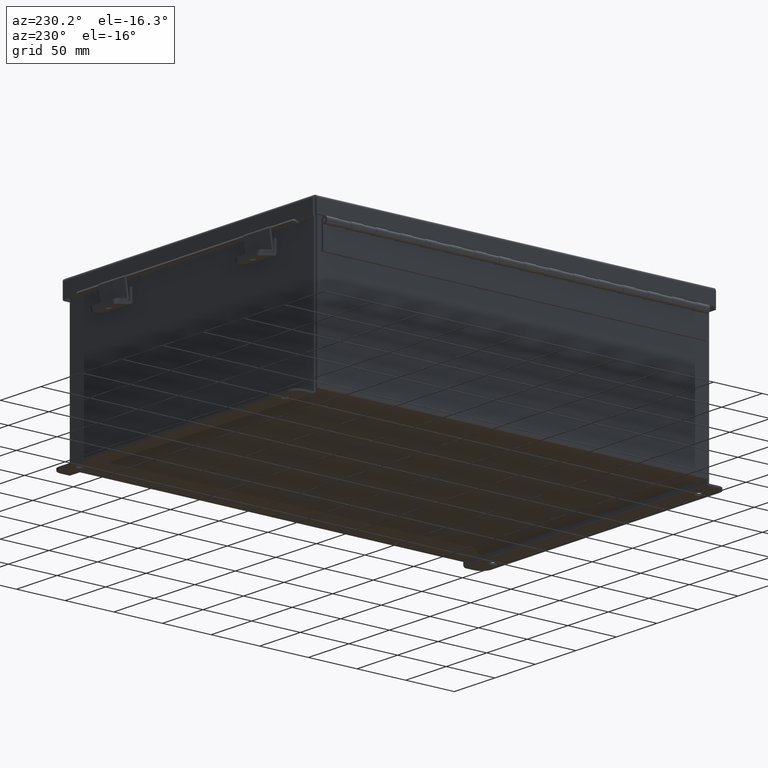
[diagram: clean part render]
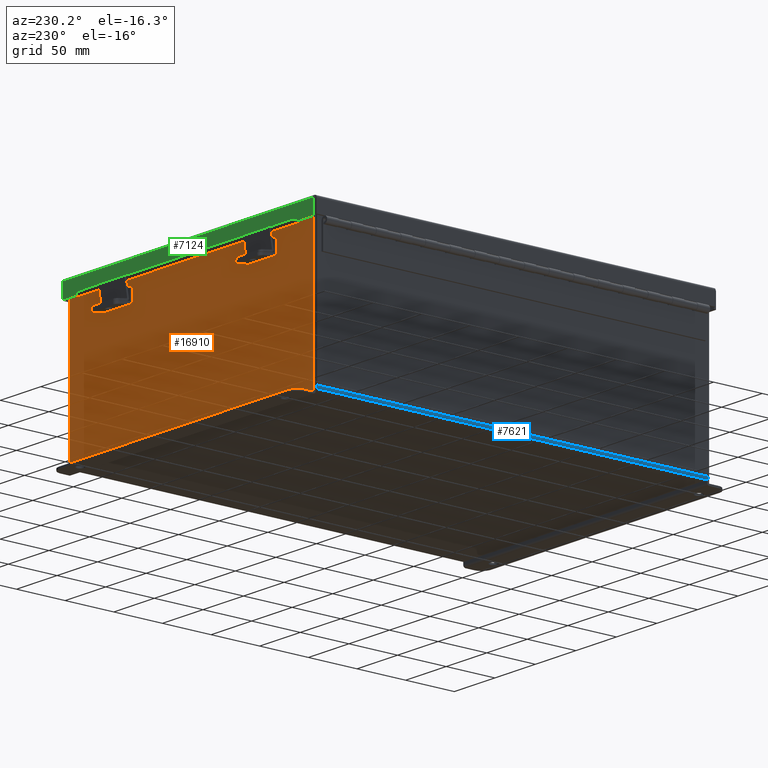
[diagram: same view with three faces highlighted in distinct colors, each labeled with its STEP entity id]
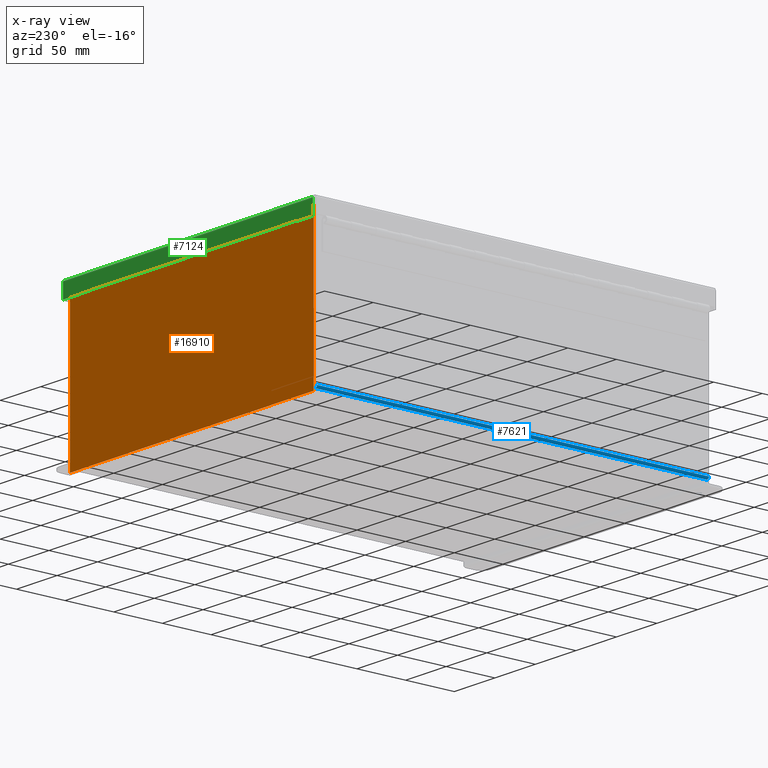
[diagram: x-ray of the same camera — body ghosted, the three highlighted faces saturated]
A machine part, auxiliary view with three faces highlighted in distinct colors.
The next image is the same camera in x-ray (body ghosted, the three faces saturated) — at least one of them is partly hidden behind the body in this view.
Their STEP definitions:

[orange] entity #16910 — the highlighted planar face has unit normal (0, -1, 0).
#170 = DIRECTION ( 'NONE',  ( -0.0000000000000000000, 1.000000000000000000, -0.0000000000000000000 ) ) ;
#941 = CARTESIAN_POINT ( 'NONE',  ( 5.582299999999999200, 0.0000000000000000000, 0.0000000000000000000 ) ) ;
#1221 = ORIENTED_EDGE ( 'NONE', *, *, #6904, .T. ) ;
#1263 = AXIS2_PLACEMENT_3D ( 'NONE', #8904, #13552, #10461 ) ;
#1463 = DIRECTION ( 'NONE',  ( 0.0000000000000000000, 0.0000000000000000000, -1.000000000000000000 ) ) ;
#1774 = VERTEX_POINT ( 'NONE', #5270 ) ;
#2016 = VERTEX_POINT ( 'NONE', #17118 ) ;
#2045 = ORIENTED_EDGE ( 'NONE', *, *, #8763, .F. ) ;
#2094 = CARTESIAN_POINT ( 'NONE',  ( 5.619650000000000000, 0.0000000000000000000, 2.925299999999999600 ) ) ;
#2206 = DIRECTION ( 'NONE',  ( 1.000000000000000000, 0.0000000000000000000, 0.0000000000000000000 ) ) ;
#2291 = VERTEX_POINT ( 'NONE', #6218 ) ;
#2847 = VERTEX_POINT ( 'NONE', #18567 ) ;
#2909 = EDGE_CURVE ( 'NONE', #2016, #5958, #11292, .T. ) ;
#3859 = CARTESIAN_POINT ( 'NONE',  ( -5.925300000000001800, 0.0000000000000000000, 2.925299999999999600 ) ) ;
#3970 = EDGE_CURVE ( 'NONE', #2016, #4163, #5202, .T. ) ;
#4073 = CARTESIAN_POINT ( 'NONE',  ( -5.619650000000000000, 0.0000000000000000000, 0.0000000000000000000 ) ) ;
#4163 = VERTEX_POINT ( 'NONE', #15773 ) ;
#4231 = ORIENTED_EDGE ( 'NONE', *, *, #19698, .F. ) ;
#4396 = ORIENTED_EDGE ( 'NONE', *, *, #4950, .T. ) ;
#4688 = CARTESIAN_POINT ( 'NONE',  ( -5.582300000000000900, 2.185478394931410600E-015, 2.912299999999999200 ) ) ;
#4906 = AXIS2_PLACEMENT_3D ( 'NONE', #9450, #170, #11011 ) ;
#4927 = ORIENTED_EDGE ( 'NONE', *, *, #3970, .F. ) ;
#4950 = EDGE_CURVE ( 'NONE', #9782, #16630, #14503, .T. ) ;
#5202 = LINE ( 'NONE', #12046, #17582 ) ;
#5259 = CIRCLE ( 'NONE', #13658, 0.01867500000000003900 ) ;
#5270 = CARTESIAN_POINT ( 'NONE',  ( -5.582300000000000000, 2.185478394931410600E-015, 2.912299999999999200 ) ) ;
#5603 = DIRECTION ( 'NONE',  ( 0.0000000000000000000, 0.0000000000000000000, 1.000000000000000000 ) ) ;
#5648 = ORIENTED_EDGE ( 'NONE', *, *, #17902, .F. ) ;
#5733 = VECTOR ( 'NONE', #5603, 39.37007874015748100 ) ;
#5845 = ORIENTED_EDGE ( 'NONE', *, *, #18230, .T. ) ;
#5918 = CARTESIAN_POINT ( 'NONE',  ( -5.582300000000000000, 0.0000000000000000000, 0.0000000000000000000 ) ) ;
#5958 = VERTEX_POINT ( 'NONE', #3859 ) ;
#5988 = DIRECTION ( 'NONE',  ( 0.0000000000000000000, 0.0000000000000000000, -1.000000000000000000 ) ) ;
#6041 = EDGE_CURVE ( 'NONE', #15264, #2847, #12523, .T. ) ;
#6218 = CARTESIAN_POINT ( 'NONE',  ( -5.619650000000000000, 0.0000000000000000000, 2.925299999999999600 ) ) ;
#6283 = LINE ( 'NONE', #14476, #17976 ) ;
#6587 = EDGE_LOOP ( 'NONE', ( #4231, #9968, #2045, #1221, #13184, #5648, #8826, #4396, #18060, #4927, #19090, #5845 ) ) ;
#6715 = LINE ( 'NONE', #4073, #5733 ) ;
#6904 = EDGE_CURVE ( 'NONE', #1774, #2847, #16610, .T. ) ;
#7178 = VECTOR ( 'NONE', #12579, 39.37007874015748100 ) ;
#8010 = VECTOR ( 'NONE', #5988, 39.37007874015748100 ) ;
#8679 = VECTOR ( 'NONE', #11920, 39.37007874015748100 ) ;
#8763 = EDGE_CURVE ( 'NONE', #1774, #11761, #15794, .T. ) ;
#8826 = ORIENTED_EDGE ( 'NONE', *, *, #15523, .F. ) ;
#8904 = CARTESIAN_POINT ( 'NONE',  ( 0.0000000000000000000, 0.0000000000000000000, 0.0000000000000000000 ) ) ;
#9450 = CARTESIAN_POINT ( 'NONE',  ( -5.600975000000000000, 0.0000000000000000000, 2.874949999999998300 ) ) ;
#9782 = VERTEX_POINT ( 'NONE', #2094 ) ;
#9968 = ORIENTED_EDGE ( 'NONE', *, *, #13138, .F. ) ;
#10031 = EDGE_CURVE ( 'NONE', #16630, #4163, #13802, .T. ) ;
#10461 = DIRECTION ( 'NONE',  ( 0.0000000000000000000, -0.0000000000000000000, -1.000000000000000000 ) ) ;
#10748 = DIRECTION ( 'NONE',  ( -0.0000000000000000000, 1.000000000000000000, -0.0000000000000000000 ) ) ;
#10866 = CARTESIAN_POINT ( 'NONE',  ( 5.582299999999999200, 0.0000000000000000000, 2.874949999999998300 ) ) ;
#10907 = CARTESIAN_POINT ( 'NONE',  ( -5.925300000000001800, 0.0000000000000000000, 2.925299999999999600 ) ) ;
#11011 = DIRECTION ( 'NONE',  ( 0.0000000000000000000, 0.0000000000000000000, -1.000000000000000000 ) ) ;
#11107 = FACE_OUTER_BOUND ( 'NONE', #6587, .T. ) ;
#11292 = LINE ( 'NONE', #10907, #7178 ) ;
#11761 = VERTEX_POINT ( 'NONE', #15395 ) ;
#11909 = DIRECTION ( 'NONE',  ( 1.000000000000000000, -0.0000000000000000000, -0.0000000000000000000 ) ) ;
#11920 = DIRECTION ( 'NONE',  ( 0.0000000000000000000, 0.0000000000000000000, -1.000000000000000000 ) ) ;
#12046 = CARTESIAN_POINT ( 'NONE',  ( -5.925300000000001800, 0.0000000000000000000, -3.099299999999999900 ) ) ;
#12424 = VERTEX_POINT ( 'NONE', #14084 ) ;
#12431 = CIRCLE ( 'NONE', #4906, 0.01867500000000003900 ) ;
#12523 = LINE ( 'NONE', #941, #16165 ) ;
#12579 = DIRECTION ( 'NONE',  ( -0.0000000000000000000, -0.0000000000000000000, 1.000000000000000000 ) ) ;
#12614 = CARTESIAN_POINT ( 'NONE',  ( 5.925299999999999100, 0.0000000000000000000, 2.925299999999999600 ) ) ;
#13138 = EDGE_CURVE ( 'NONE', #11761, #12424, #12431, .T. ) ;
#13184 = ORIENTED_EDGE ( 'NONE', *, *, #6041, .F. ) ;
#13552 = DIRECTION ( 'NONE',  ( 0.0000000000000000000, -1.000000000000000000, 0.0000000000000000000 ) ) ;
#13658 = AXIS2_PLACEMENT_3D ( 'NONE', #20088, #10748, #1463 ) ;
#13802 = LINE ( 'NONE', #16533, #8679 ) ;
#14001 = CARTESIAN_POINT ( 'NONE',  ( -5.925300000000001800, 0.0000000000000000000, 2.925299999999999600 ) ) ;
#14084 = CARTESIAN_POINT ( 'NONE',  ( -5.619650000000000000, 0.0000000000000000000, 2.874949999999998300 ) ) ;
#14476 = CARTESIAN_POINT ( 'NONE',  ( 5.619649999999937000, 0.0000000000000000000, -1.218404205174261500E-013 ) ) ;
#14503 = LINE ( 'NONE', #14001, #18163 ) ;
#14956 = DIRECTION ( 'NONE',  ( 0.0000000000000000000, 0.0000000000000000000, 1.000000000000000000 ) ) ;
#15264 = VERTEX_POINT ( 'NONE', #10866 ) ;
#15395 = CARTESIAN_POINT ( 'NONE',  ( -5.582300000000000000, 0.0000000000000000000, 2.874949999999998300 ) ) ;
#15523 = EDGE_CURVE ( 'NONE', #9782, #17200, #6283, .T. ) ;
#15561 = DIRECTION ( 'NONE',  ( 1.000000000000000000, 0.0000000000000000000, 0.0000000000000000000 ) ) ;
#15773 = CARTESIAN_POINT ( 'NONE',  ( 5.925299999999999100, 0.0000000000000000000, -3.099299999999999900 ) ) ;
#15794 = LINE ( 'NONE', #5918, #8010 ) ;
#16126 = VECTOR ( 'NONE', #20022, 39.37007874015748100 ) ;
#16165 = VECTOR ( 'NONE', #14956, 39.37007874015748100 ) ;
#16204 = CARTESIAN_POINT ( 'NONE',  ( -5.925300000000001800, 0.0000000000000000000, 2.925299999999999600 ) ) ;
#16533 = CARTESIAN_POINT ( 'NONE',  ( 5.925299999999999100, 0.0000000000000000000, 2.925299999999999600 ) ) ;
#16610 = LINE ( 'NONE', #4688, #16126 ) ;
#16630 = VERTEX_POINT ( 'NONE', #12614 ) ;
#16910 = ADVANCED_FACE ( 'NONE', ( #11107 ), #18252, .F. ) ;
#17118 = CARTESIAN_POINT ( 'NONE',  ( -5.925300000000000000, 0.0000000000000000000, -3.099299999999999900 ) ) ;
#17200 = VERTEX_POINT ( 'NONE', #18938 ) ;
#17582 = VECTOR ( 'NONE', #11909, 39.37007874015748100 ) ;
#17902 = EDGE_CURVE ( 'NONE', #17200, #15264, #5259, .T. ) ;
#17976 = VECTOR ( 'NONE', #19188, 39.37007874015748100 ) ;
#18060 = ORIENTED_EDGE ( 'NONE', *, *, #10031, .T. ) ;
#18163 = VECTOR ( 'NONE', #15561, 39.37007874015748100 ) ;
#18230 = EDGE_CURVE ( 'NONE', #5958, #2291, #19117, .T. ) ;
#18252 = PLANE ( 'NONE',  #1263 ) ;
#18567 = CARTESIAN_POINT ( 'NONE',  ( 5.582299999999999200, 0.0000000000000000000, 2.912299999999999200 ) ) ;
#18633 = VECTOR ( 'NONE', #2206, 39.37007874015748100 ) ;
#18938 = CARTESIAN_POINT ( 'NONE',  ( 5.619649999999998300, 0.0000000000000000000, 2.874949999999998300 ) ) ;
#19090 = ORIENTED_EDGE ( 'NONE', *, *, #2909, .T. ) ;
#19117 = LINE ( 'NONE', #16204, #18633 ) ;
#19188 = DIRECTION ( 'NONE',  ( -2.170286390199955400E-014, 0.0000000000000000000, -1.000000000000000000 ) ) ;
#19698 = EDGE_CURVE ( 'NONE', #12424, #2291, #6715, .T. ) ;
#20022 = DIRECTION ( 'NONE',  ( 1.000000000000000000, 0.0000000000000000000, 0.0000000000000000000 ) ) ;
#20088 = CARTESIAN_POINT ( 'NONE',  ( 5.600974999999998300, 0.0000000000000000000, 2.874949999999998300 ) ) ;

[blue] entity #7621 — the highlighted cylindrical surface (edge-blend (fillet) strip) has radius 2.2276 mm, axis along (0, -1, 0).
#683 = EDGE_CURVE ( 'NONE', #19626, #9376, #9967, .T. ) ;
#918 = CARTESIAN_POINT ( 'NONE',  ( -6.000000000000000900, 7.925299999999998200, 0.01299999999999984300 ) ) ;
#1145 = ORIENTED_EDGE ( 'NONE', *, *, #11826, .F. ) ;
#1469 = ORIENTED_EDGE ( 'NONE', *, *, #16192, .F. ) ;
#1760 = AXIS2_PLACEMENT_3D ( 'NONE', #8241, #17545, #11282 ) ;
#2120 = ORIENTED_EDGE ( 'NONE', *, *, #17308, .F. ) ;
#2654 = CIRCLE ( 'NONE', #10750, 0.08770000000000009700 ) ;
#3196 = DIRECTION ( 'NONE',  ( -0.0000000000000000000, 1.000000000000000000, -0.0000000000000000000 ) ) ;
#3712 = DIRECTION ( 'NONE',  ( -0.0000000000000000000, 1.000000000000000000, -0.0000000000000000000 ) ) ;
#4039 = AXIS2_PLACEMENT_3D ( 'NONE', #12989, #3712, #14549 ) ;
#4724 = FACE_OUTER_BOUND ( 'NONE', #7854, .T. ) ;
#5481 = CARTESIAN_POINT ( 'NONE',  ( -5.912300000000000100, -7.925300000000000000, 0.01300000000000015000 ) ) ;
#6212 = LINE ( 'NONE', #12399, #12530 ) ;
#7051 = DIRECTION ( 'NONE',  ( 0.0000000000000000000, 0.0000000000000000000, -1.000000000000000000 ) ) ;
#7621 = ADVANCED_FACE ( 'NONE', ( #4724 ), #16612, .T. ) ;
#7779 = CARTESIAN_POINT ( 'NONE',  ( -5.912300000000000100, 7.925299999999998200, -0.07470000000000000300 ) ) ;
#7854 = EDGE_LOOP ( 'NONE', ( #1145, #1469, #13616, #2120 ) ) ;
#8241 = CARTESIAN_POINT ( 'NONE',  ( -5.912300000000000100, -7.925300000000000900, 0.01300000000000015000 ) ) ;
#9376 = VERTEX_POINT ( 'NONE', #918 ) ;
#9967 = LINE ( 'NONE', #17013, #17774 ) ;
#10750 = AXIS2_PLACEMENT_3D ( 'NONE', #5481, #16337, #7051 ) ;
#11282 = DIRECTION ( 'NONE',  ( -1.000000000000000000, 0.0000000000000000000, -3.553037762569317100E-015 ) ) ;
#11583 = CARTESIAN_POINT ( 'NONE',  ( -6.000000000000000900, -7.925300000000000000, 0.01299999999999984300 ) ) ;
#11826 = EDGE_CURVE ( 'NONE', #16914, #17957, #6212, .T. ) ;
#12399 = CARTESIAN_POINT ( 'NONE',  ( -5.912300000000000100, -7.925300000000000900, -0.07469999999999994700 ) ) ;
#12530 = VECTOR ( 'NONE', #3196, 39.37007874015748100 ) ;
#12989 = CARTESIAN_POINT ( 'NONE',  ( -5.912300000000000100, 7.925299999999998200, 0.01300000000000015000 ) ) ;
#13616 = ORIENTED_EDGE ( 'NONE', *, *, #683, .T. ) ;
#14549 = DIRECTION ( 'NONE',  ( 0.0000000000000000000, 0.0000000000000000000, -1.000000000000000000 ) ) ;
#16192 = EDGE_CURVE ( 'NONE', #19626, #16914, #2654, .T. ) ;
#16337 = DIRECTION ( 'NONE',  ( 0.0000000000000000000, -1.000000000000000000, 0.0000000000000000000 ) ) ;
#16612 = CYLINDRICAL_SURFACE ( 'NONE', #1760, 0.08770000000000026400 ) ;
#16778 = DIRECTION ( 'NONE',  ( -0.0000000000000000000, 1.000000000000000000, -0.0000000000000000000 ) ) ;
#16914 = VERTEX_POINT ( 'NONE', #19797 ) ;
#17013 = CARTESIAN_POINT ( 'NONE',  ( -6.000000000000000900, 7.925299999999998200, 0.01299999999999984300 ) ) ;
#17185 = CIRCLE ( 'NONE', #4039, 0.08770000000000009700 ) ;
#17308 = EDGE_CURVE ( 'NONE', #17957, #9376, #17185, .T. ) ;
#17545 = DIRECTION ( 'NONE',  ( 0.0000000000000000000, -1.000000000000000000, 0.0000000000000000000 ) ) ;
#17774 = VECTOR ( 'NONE', #16778, 39.37007874015748100 ) ;
#17957 = VERTEX_POINT ( 'NONE', #7779 ) ;
#19626 = VERTEX_POINT ( 'NONE', #11583 ) ;
#19797 = CARTESIAN_POINT ( 'NONE',  ( -5.912300000000000100, -7.925300000000000000, -0.07469999999999994700 ) ) ;

[green] entity #7124 — the highlighted planar face has unit normal (-0, -1, -0).
#226 = CARTESIAN_POINT ( 'NONE',  ( 5.324478932188150700, 8.156250000000000000, 0.5967115427318782100 ) ) ;
#518 = VERTEX_POINT ( 'NONE', #19661 ) ;
#635 = LINE ( 'NONE', #10902, #12563 ) ;
#853 = DIRECTION ( 'NONE',  ( 1.000000000000000000, 3.215253892142773000E-030, 5.546899479520625800E-018 ) ) ;
#1232 = CARTESIAN_POINT ( 'NONE',  ( -5.324478932188149800, 8.156250000000001800, 0.6123000000000080600 ) ) ;
#1248 = CARTESIAN_POINT ( 'NONE',  ( -6.074478932188154300, 8.156250000000001800, 0.6123000000000080600 ) ) ;
#1559 = CARTESIAN_POINT ( 'NONE',  ( 5.324478932188150700, 8.156250000000003600, 0.6122999999999982900 ) ) ;
#1729 = CARTESIAN_POINT ( 'NONE',  ( 6.074478932188154300, 8.156250000000000000, 0.01299999999999901400 ) ) ;
#2017 = LINE ( 'NONE', #6683, #17557 ) ;
#2363 = CARTESIAN_POINT ( 'NONE',  ( 0.0000000000000000000, 8.156250000000000000, -2.950395833157404200E-014 ) ) ;
#2656 = EDGE_CURVE ( 'NONE', #4661, #12928, #7918, .T. ) ;
#2906 = VECTOR ( 'NONE', #15545, 39.37007874015748100 ) ;
#3040 = ORIENTED_EDGE ( 'NONE', *, *, #12574, .F. ) ;
#3226 = EDGE_CURVE ( 'NONE', #10504, #5572, #11035, .T. ) ;
#3914 = CARTESIAN_POINT ( 'NONE',  ( 5.324478932188149800, 8.156250000000001800, 0.5967115427318782100 ) ) ;
#3929 = DIRECTION ( 'NONE',  ( -3.372195227344556400E-030, -1.000000000000000000, 3.569293475308532400E-015 ) ) ;
#4120 = LINE ( 'NONE', #9402, #20151 ) ;
#4661 = VERTEX_POINT ( 'NONE', #3914 ) ;
#4771 = DIRECTION ( 'NONE',  ( 1.000000000000000000, 3.215253892142773000E-030, 5.546899479520625800E-018 ) ) ;
#4831 = DIRECTION ( 'NONE',  ( 0.0000000000000000000, 3.569293475308532400E-015, 1.000000000000000000 ) ) ;
#5572 = VERTEX_POINT ( 'NONE', #13883 ) ;
#6362 = ORIENTED_EDGE ( 'NONE', *, *, #7325, .F. ) ;
#6395 = ORIENTED_EDGE ( 'NONE', *, *, #19355, .T. ) ;
#6683 = CARTESIAN_POINT ( 'NONE',  ( 6.156250000000015100, 8.156250000000000000, 0.01300000000000010700 ) ) ;
#7032 = LINE ( 'NONE', #1559, #2906 ) ;
#7124 = ADVANCED_FACE ( 'NONE', ( #12720 ), #13219, .F. ) ;
#7325 = EDGE_CURVE ( 'NONE', #12928, #15125, #18349, .T. ) ;
#7918 = LINE ( 'NONE', #226, #11551 ) ;
#9402 = CARTESIAN_POINT ( 'NONE',  ( -6.074478932188153400, 8.156250000000000000, -2.841121913410833900E-014 ) ) ;
#9500 = ORIENTED_EDGE ( 'NONE', *, *, #3226, .T. ) ;
#9609 = EDGE_CURVE ( 'NONE', #518, #17809, #4120, .T. ) ;
#10396 = CARTESIAN_POINT ( 'NONE',  ( 6.074478932188153400, 8.156250000000000000, -1.092739197465705300E-015 ) ) ;
#10504 = VERTEX_POINT ( 'NONE', #11302 ) ;
#10540 = VECTOR ( 'NONE', #853, 39.37007874015748100 ) ;
#10819 = AXIS2_PLACEMENT_3D ( 'NONE', #2363, #3929, #14776 ) ;
#10884 = EDGE_LOOP ( 'NONE', ( #15914, #9500, #15869, #3040, #15143, #6395, #6362, #19057 ) ) ;
#10902 = CARTESIAN_POINT ( 'NONE',  ( -3.201384367575308500E-018, 8.156250000000001800, 0.6123000000000005100 ) ) ;
#11035 = LINE ( 'NONE', #19488, #10540 ) ;
#11302 = CARTESIAN_POINT ( 'NONE',  ( 5.324478932188150700, 8.156250000000001800, 0.6122999999999994000 ) ) ;
#11551 = VECTOR ( 'NONE', #12295, 39.37007874015748100 ) ;
#12120 = CARTESIAN_POINT ( 'NONE',  ( -5.324478932188150700, 8.156250000000001800, 0.5967115427318858700 ) ) ;
#12162 = EDGE_CURVE ( 'NONE', #16626, #5572, #19764, .T. ) ;
#12295 = DIRECTION ( 'NONE',  ( -1.000000000000000000, -3.215975411700707400E-030, -0.0000000000000000000 ) ) ;
#12563 = VECTOR ( 'NONE', #4771, 39.37007874015748100 ) ;
#12574 = EDGE_CURVE ( 'NONE', #518, #16626, #2017, .T. ) ;
#12720 = FACE_OUTER_BOUND ( 'NONE', #10884, .T. ) ;
#12928 = VERTEX_POINT ( 'NONE', #12120 ) ;
#13219 = PLANE ( 'NONE',  #10819 ) ;
#13883 = CARTESIAN_POINT ( 'NONE',  ( 6.074478932188153400, 8.156250000000001800, 0.6122999999999994000 ) ) ;
#14776 = DIRECTION ( 'NONE',  ( 0.0000000000000000000, -3.569293475308532400E-015, -1.000000000000000000 ) ) ;
#15125 = VERTEX_POINT ( 'NONE', #1232 ) ;
#15143 = ORIENTED_EDGE ( 'NONE', *, *, #9609, .T. ) ;
#15545 = DIRECTION ( 'NONE',  ( -7.009925220120406800E-014, -2.803970088048153600E-013, -1.000000000000000000 ) ) ;
#15628 = VECTOR ( 'NONE', #18187, 39.37007874015748100 ) ;
#15869 = ORIENTED_EDGE ( 'NONE', *, *, #12162, .F. ) ;
#15914 = ORIENTED_EDGE ( 'NONE', *, *, #15961, .F. ) ;
#15961 = EDGE_CURVE ( 'NONE', #10504, #4661, #7032, .T. ) ;
#16626 = VERTEX_POINT ( 'NONE', #1729 ) ;
#16671 = CARTESIAN_POINT ( 'NONE',  ( -5.324478932188150700, 8.156250000000000000, 0.5967115427318858700 ) ) ;
#17557 = VECTOR ( 'NONE', #19130, 39.37007874015748100 ) ;
#17809 = VERTEX_POINT ( 'NONE', #1248 ) ;
#17835 = VECTOR ( 'NONE', #18259, 39.37007874015748100 ) ;
#18187 = DIRECTION ( 'NONE',  ( -0.0000000000000000000, 3.569293475308532400E-015, 1.000000000000000000 ) ) ;
#18259 = DIRECTION ( 'NONE',  ( 0.0000000000000000000, 2.102977566036071600E-013, 1.000000000000000000 ) ) ;
#18349 = LINE ( 'NONE', #16671, #17835 ) ;
#19057 = ORIENTED_EDGE ( 'NONE', *, *, #2656, .F. ) ;
#19130 = DIRECTION ( 'NONE',  ( 1.000000000000000000, 3.191323508412550700E-030, -0.0000000000000000000 ) ) ;
#19355 = EDGE_CURVE ( 'NONE', #17809, #15125, #635, .T. ) ;
#19488 = CARTESIAN_POINT ( 'NONE',  ( -3.201384367575308500E-018, 8.156250000000001800, 0.6123000000000005100 ) ) ;
#19661 = CARTESIAN_POINT ( 'NONE',  ( -6.074478932188154300, 8.156250000000000000, 0.01300000000000010700 ) ) ;
#19764 = LINE ( 'NONE', #10396, #15628 ) ;
#20151 = VECTOR ( 'NONE', #4831, 39.37007874015748100 ) ;